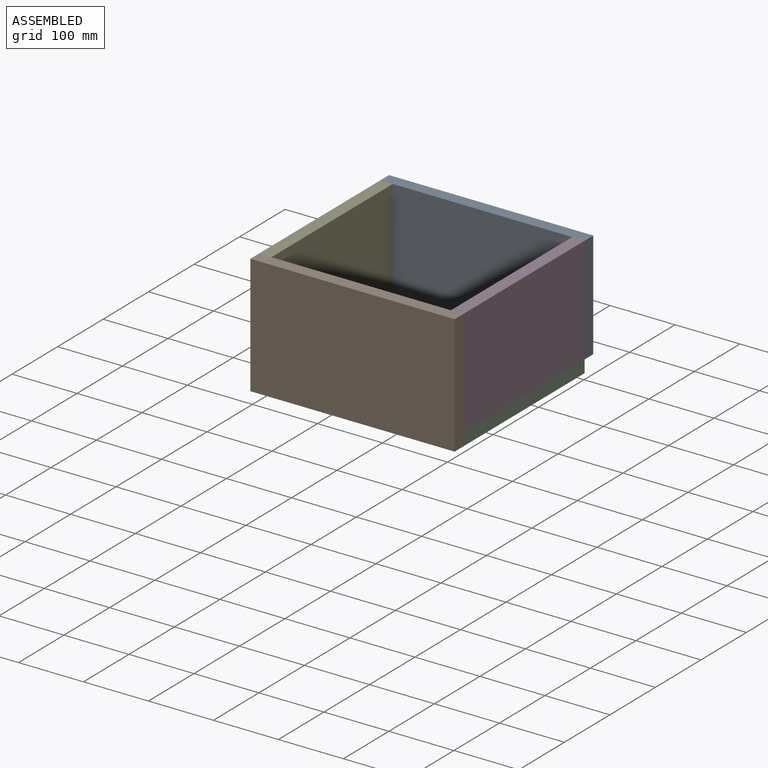
[diagram: assembled view]
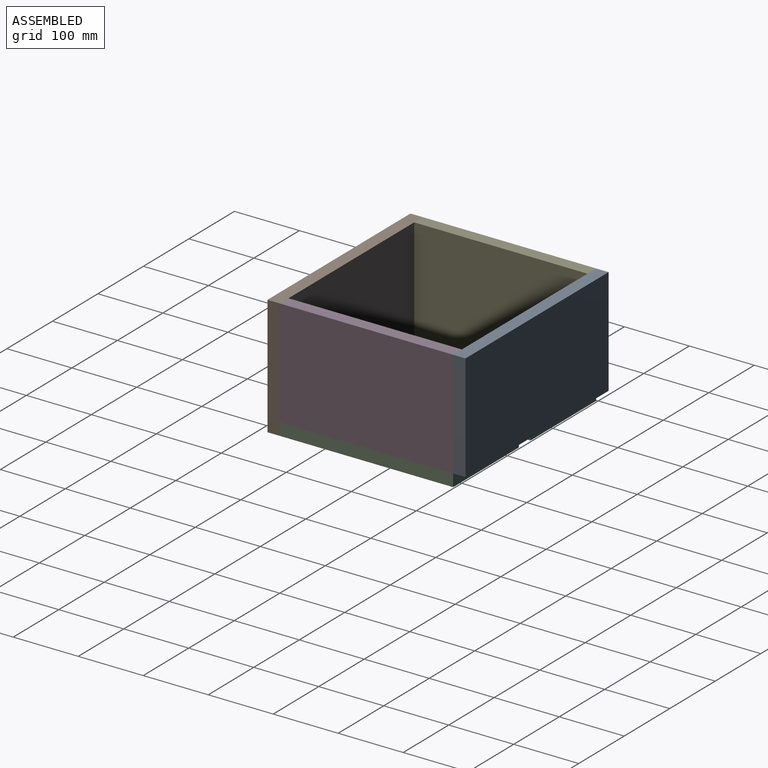
[diagram: assembled view, second angle]
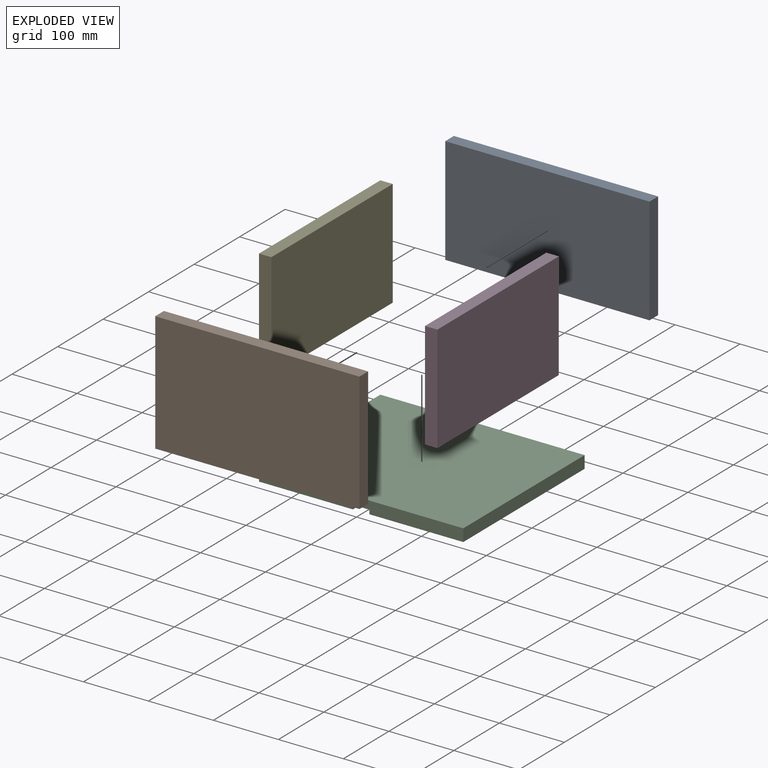
[diagram: exploded view]
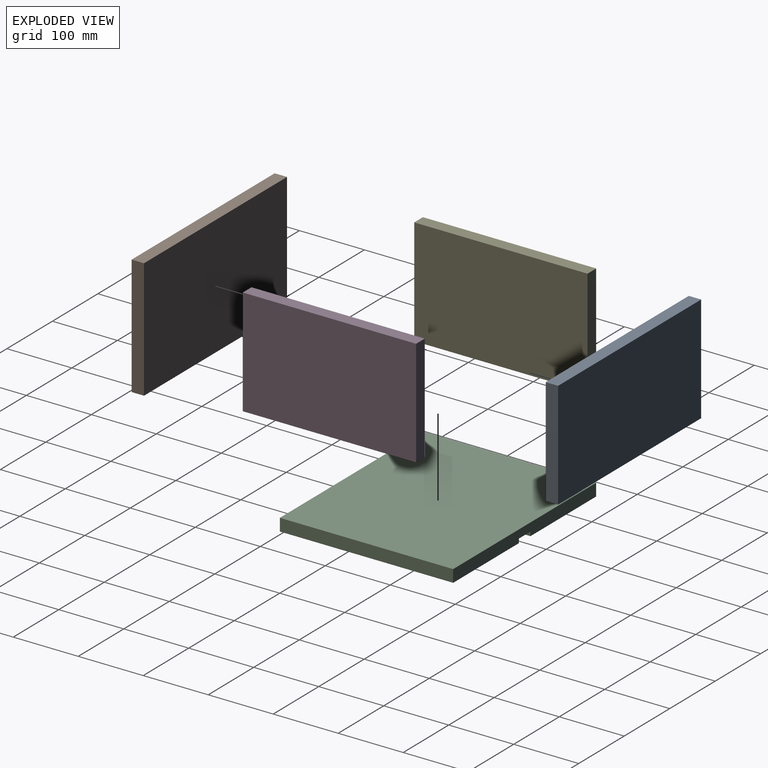
[diagram: exploded view, second angle]
ASSEMBLY  parts=5 mates=4
PART A: 6 faces, bbox 314.3x19.1x165.1 mm
  f0: plane 165.1x19.05mm, normal (1,0,0), area 3145.2mm2, adj f1,f3,f4,f5
  f1: plane 314.33x19.05mm, normal (0,0,1), area 5987.9mm2, adj f0,f2,f4,f5
  f2: plane 165.1x19.05mm, normal (-1,0,0), area 3145.2mm2, adj f1,f3,f4,f5
  f3: plane 314.33x19.05mm, normal (0,0,-1), area 5987.9mm2, adj f0,f2,f4,f5
  f4: plane 314.33x165.1mm, normal (0,-1,0), area 51895.1mm2, adj f0,f1,f2,f3
  f5: plane 314.33x165.1mm, normal (0,1,0), area 51895.1mm2, adj f0,f1,f2,f3
PART B: 6 faces, bbox 314.3x19.1x184.2 mm
  f0: plane 184.15x19.05mm, normal (1,0,0), area 3508.1mm2, adj f1,f3,f4,f5
  f1: plane 314.33x19.05mm, normal (0,0,1), area 5987.9mm2, adj f0,f2,f4,f5
  f2: plane 184.15x19.05mm, normal (-1,0,0), area 3508.1mm2, adj f1,f3,f4,f5
  f3: plane 314.33x19.05mm, normal (0,0,-1), area 5987.9mm2, adj f0,f2,f4,f5
  f4: plane 314.33x184.15mm, normal (0,-1,0), area 57882.9mm2, adj f0,f1,f2,f3
  f5: plane 314.33x184.15mm, normal (0,1,0), area 57882.9mm2, adj f0,f1,f2,f3
PART C: 10 faces, bbox 314.3x19.1x266.7 mm
  f0: plane 266.7x144.46mm, normal (0,-1,0), area 38528.1mm2, adj f1,f2,f3,f7
  f1: plane 314.33x19.05mm, normal (0,0,-1), area 5826.6mm2, adj f0,f2,f4,f5,f6,f7,f8,f9
  f2: plane 266.7x19.05mm, normal (1,0,0), area 5080.6mm2, adj f0,f1,f3,f6
  f3: plane 314.33x19.05mm, normal (0,0,1), area 5826.6mm2, adj f0,f2,f4,f5,f6,f7,f8,f9
  f4: plane 266.7x19.05mm, normal (-1,0,0), area 5080.6mm2, adj f1,f3,f5,f6
  f5: plane 266.7x144.46mm, normal (0,-1,0), area 38528.1mm2, adj f1,f3,f4,f8
  f6: plane 314.33x266.7mm, normal (0,1,0), area 83830.5mm2, adj f1,f2,f3,f4
  f7: plane 266.7x6.35mm, normal (-1,0,0), area 1693.5mm2, adj f0,f1,f3,f9
  f8: plane 266.7x6.35mm, normal (1,0,0), area 1693.5mm2, adj f1,f3,f5,f9
  f9: plane 266.7x25.4mm, normal (0,-1,0), area 6774.2mm2, adj f1,f3,f7,f8
PART D: 6 faces, bbox 266.7x19.1x165.1 mm
  f0: plane 165.1x19.05mm, normal (1,0,0), area 3145.2mm2, adj f1,f3,f4,f5
  f1: plane 266.7x19.05mm, normal (0,0,1), area 5080.6mm2, adj f0,f2,f4,f5
  f2: plane 165.1x19.05mm, normal (-1,0,0), area 3145.2mm2, adj f1,f3,f4,f5
  f3: plane 266.7x19.05mm, normal (0,0,-1), area 5080.6mm2, adj f0,f2,f4,f5
  f4: plane 266.7x165.1mm, normal (0,-1,0), area 44032.2mm2, adj f0,f1,f2,f3
  f5: plane 266.7x165.1mm, normal (0,1,0), area 44032.2mm2, adj f0,f1,f2,f3
PART E: same geometry as D
PLACE A t=(-95.23,-620.31,461.16)mm
PLACE B t=(-95.23,-906.06,447.3)mm
PLACE C rot(axis=(1,0,0),90deg) t=(-95.23,-763.19,369.08)mm
PLACE D rot(axis=(0,0,1),90deg) t=(52.41,-763.19,461.16)mm
PLACE E rot(axis=(0,0,-1),90deg) t=(-242.86,-763.19,461.16)mm
MATE fastened B.f5 <-> E.f0  axis (0,1,0) through (-252.39,-896.54,543.71)mm
MATE fastened C.f6 <-> E.f3  axis (0,0,1) through (-252.39,-629.84,378.61)mm
MATE fastened B.f5 <-> D.f2  axis (0,1,0) through (61.94,-896.54,543.71)mm
MATE fastened A.f4 <-> E.f2  axis (0,-1,0) through (-252.39,-629.84,543.71)mm
